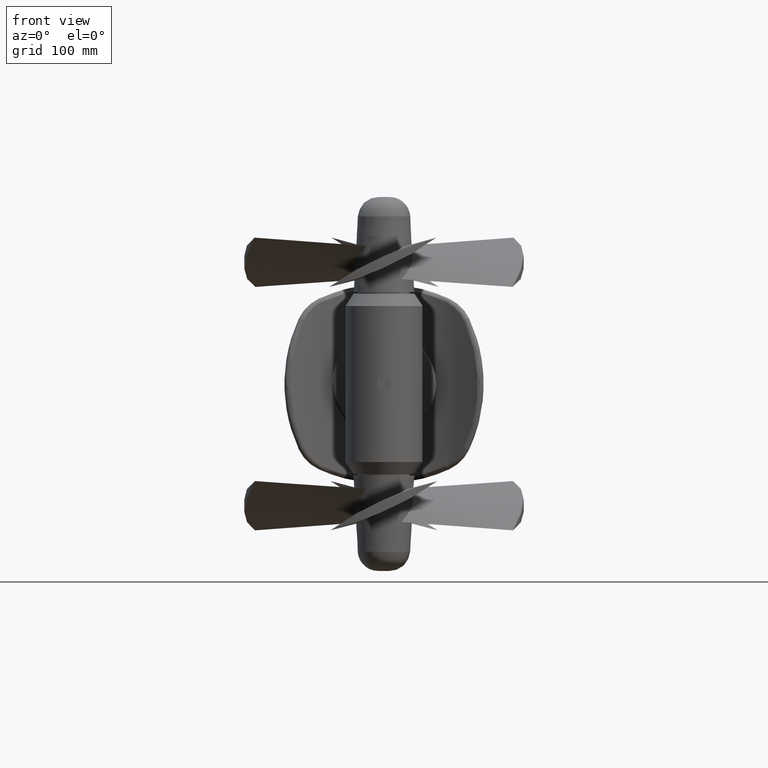
[diagram: clean part render]
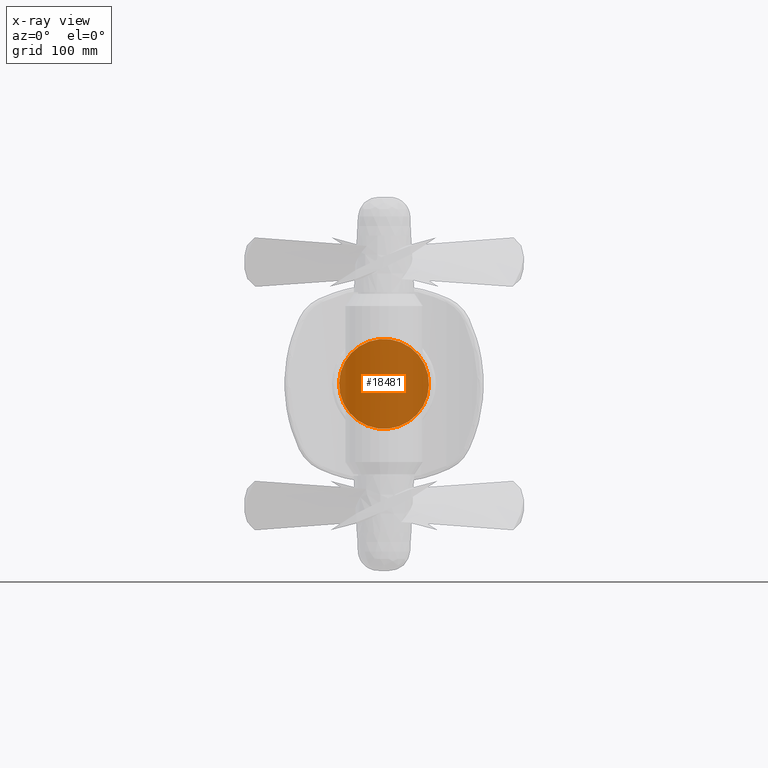
[diagram: x-ray — body ghosted, one internal face saturated and labeled with its STEP entity id]
A machine part, front view, then the same camera in x-ray: the body is ghosted and one INTERNAL B-rep face — a face not visible from any outside direction — is saturated and labeled: STEP entity #18481.
In plain terms, the highlighted planar face has unit normal (-0, -1, -0).
Its self-contained STEP definition (entity closure, byte-faithful):
#3900=FACE_OUTER_BOUND('',#5392,.T.);
#5392=EDGE_LOOP('',(#13162));
#6538=CIRCLE('',#20033,60.5000000000001);
#7857=VERTEX_POINT('',#35365);
#9724=EDGE_CURVE('',#7857,#7857,#6538,.T.);
#13162=ORIENTED_EDGE('',*,*,#9724,.T.);
#16658=PLANE('',#20032);
#18481=ADVANCED_FACE('',(#3900),#16658,.T.);
#20032=AXIS2_PLACEMENT_3D('',#35364,#22879,#22880);
#20033=AXIS2_PLACEMENT_3D('',#35366,#22881,#22882);
#22879=DIRECTION('center_axis',(-3.77475828372553E-15,-1.,-1.32814766129474E-16));
#22880=DIRECTION('ref_axis',(-0.263047326208787,0.,-0.964782931116843));
#22881=DIRECTION('center_axis',(-3.77475828372553E-15,-1.,-1.32814766129474E-16));
#22882=DIRECTION('ref_axis',(0.964782931116843,-3.6068857921189E-15,-0.263047326208787));
#35364=CARTESIAN_POINT('Origin',(3.89657678097686,215.843640227487,-3.22509682013691E-8));
#35365=CARTESIAN_POINT('',(62.2659441135459,215.843640227487,-15.9143632678826));
#35366=CARTESIAN_POINT('Origin',(3.89657678097686,215.843640227487,-3.22509682013691E-8));